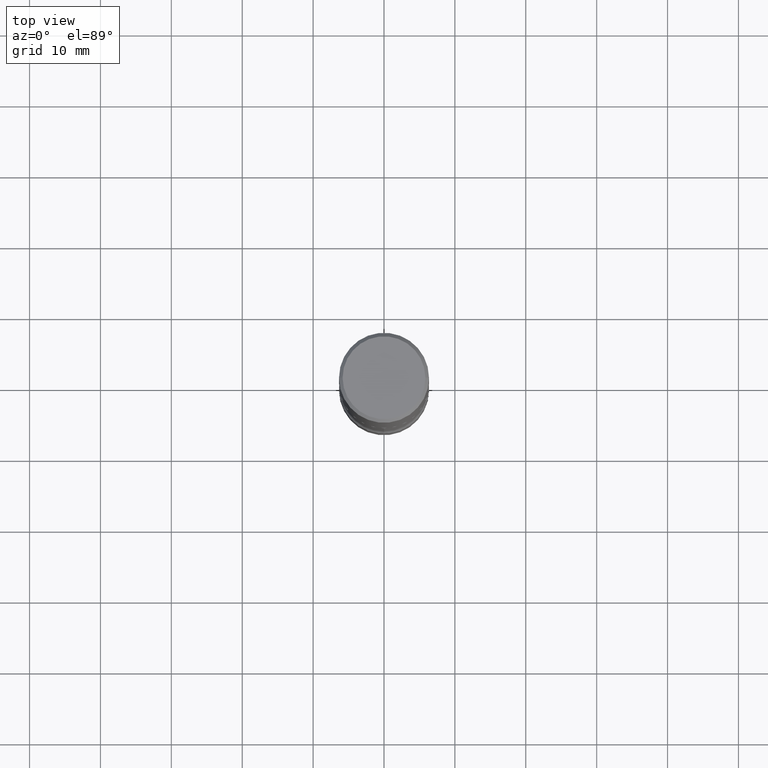
[diagram: clean part render]
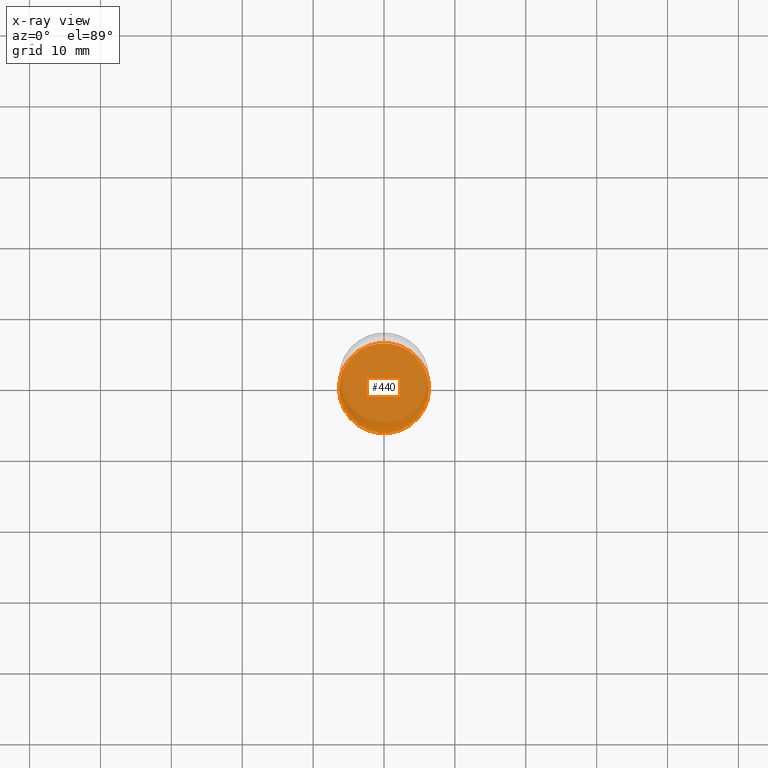
[diagram: x-ray — body ghosted, one internal face saturated and labeled with its STEP entity id]
A machine part, top view, then the same camera in x-ray: the body is ghosted and one INTERNAL B-rep face — a face not visible from any outside direction — is saturated and labeled: STEP entity #440.
In plain terms, the highlighted planar face has unit normal (0, -0, -1).
Its self-contained STEP definition (entity closure, byte-faithful):
#28 = DIRECTION ( 'NONE',  ( -1.000000000000000000, 6.982962677686265922E-15, -4.876176775795935793E-29 ) ) ;
#39 = CARTESIAN_POINT ( 'NONE',  ( 8.253457220874836014E-29, -1.178374951859561452E-14, -3.375000000000000000 ) ) ;
#70 = DIRECTION ( 'NONE',  ( -2.445468806185136597E-29, 3.491481338843145583E-15, 1.000000000000000000 ) ) ;
#83 = CIRCLE ( 'NONE', #417, 0.2500000000000003331 ) ;
#97 = VERTEX_POINT ( 'NONE', #117 ) ;
#117 = CARTESIAN_POINT ( 'NONE',  ( -0.2500000000000003331, -1.104610837750119891E-14, -3.375000000000000000 ) ) ;
#128 = EDGE_CURVE ( 'NONE', #502, #97, #404, .T. ) ;
#132 = AXIS2_PLACEMENT_3D ( 'NONE', #420, #377, #28 ) ;
#148 = DIRECTION ( 'NONE',  ( 1.000000000000000000, -6.982962677686269077E-15, 0.000000000000000000 ) ) ;
#156 = ORIENTED_EDGE ( 'NONE', *, *, #466, .T. ) ;
#198 = FACE_OUTER_BOUND ( 'NONE', #398, .T. ) ;
#231 = CARTESIAN_POINT ( 'NONE',  ( 0.2500000000000003331, -1.352949018801718435E-14, -3.375000000000000000 ) ) ;
#241 = PLANE ( 'NONE',  #132 ) ;
#330 = ORIENTED_EDGE ( 'NONE', *, *, #128, .T. ) ;
#366 = AXIS2_PLACEMENT_3D ( 'NONE', #39, #70, #427 ) ;
#377 = DIRECTION ( 'NONE',  ( 2.438088387897960049E-29, -3.491481338843145188E-15, -1.000000000000000000 ) ) ;
#398 = EDGE_LOOP ( 'NONE', ( #330, #156 ) ) ;
#404 = CIRCLE ( 'NONE', #366, 0.2500000000000003331 ) ;
#408 = CARTESIAN_POINT ( 'NONE',  ( 8.253457220874836014E-29, -1.178374951859561452E-14, -3.375000000000000000 ) ) ;
#417 = AXIS2_PLACEMENT_3D ( 'NONE', #408, #539, #148 ) ;
#420 = CARTESIAN_POINT ( 'NONE',  ( 8.253457220874836014E-29, -1.178374951859561452E-14, -3.375000000000000000 ) ) ;
#427 = DIRECTION ( 'NONE',  ( 1.000000000000000000, -6.982962677686269077E-15, 0.000000000000000000 ) ) ;
#440 = ADVANCED_FACE ( 'NONE', ( #198 ), #241, .F. ) ;
#466 = EDGE_CURVE ( 'NONE', #97, #502, #83, .T. ) ;
#502 = VERTEX_POINT ( 'NONE', #231 ) ;
#539 = DIRECTION ( 'NONE',  ( -2.445468806185136597E-29, 3.491481338843145583E-15, 1.000000000000000000 ) ) ;